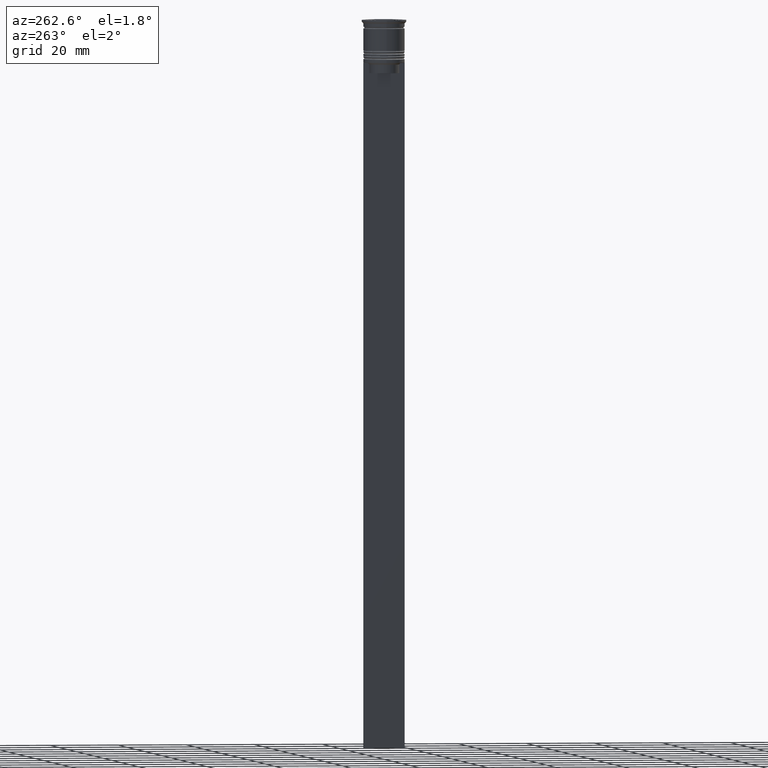
[diagram: clean part render]
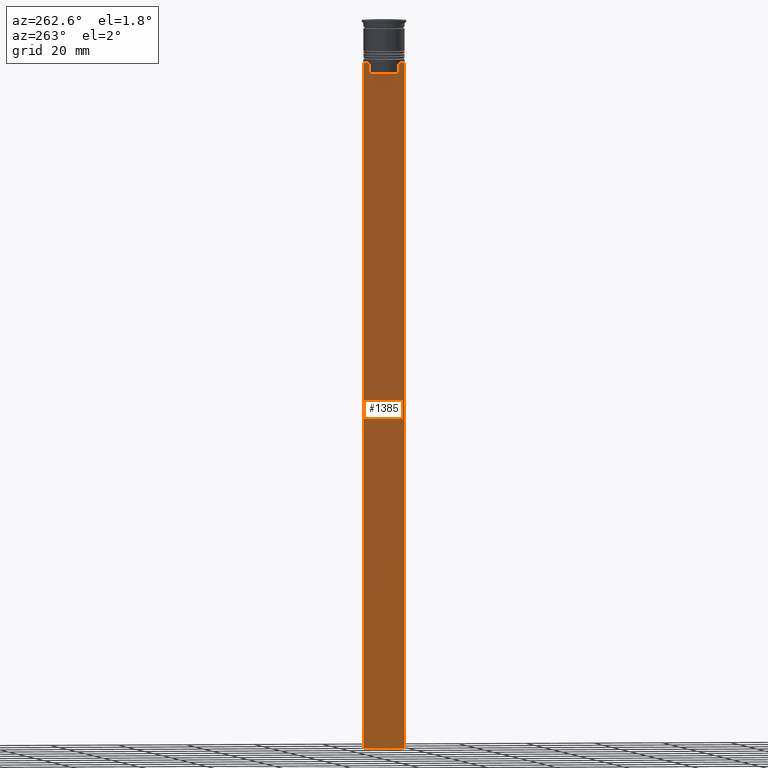
[diagram: same view with one face highlighted and labeled with its STEP entity id]
A machine part, auxiliary view. The second image highlights one B-rep face of the part: STEP entity #1385.
In plain terms, the highlighted planar face has unit normal (-1, 0, 0).
Its self-contained STEP definition (entity closure, byte-faithful):
#3 = LINE ( 'NONE', #2126, #47 ) ;
#34 = ORIENTED_EDGE ( 'NONE', *, *, #598, .F. ) ;
#47 = VECTOR ( 'NONE', #1653, 1000.000000000000000 ) ;
#75 = VERTEX_POINT ( 'NONE', #269 ) ;
#138 = B_SPLINE_CURVE_WITH_KNOTS ( 'NONE', 3,
 ( #183, #546, #1305, #1108 ),
 .UNSPECIFIED., .F., .F.,
 ( 4, 4 ),
 ( 0.008336552452178418518, 0.009045730124312837891 ),
 .UNSPECIFIED. ) ;
#158 = CARTESIAN_POINT ( 'NONE',  ( -0.4999999999999997780, 6.000000000000001776, -12.50000000000000000 ) ) ;
#183 = CARTESIAN_POINT ( 'NONE',  ( -0.4999999999999997780, 4.874423042781576676, -12.50000000000000000 ) ) ;
#213 = EDGE_CURVE ( 'NONE', #1295, #517, #1474, .T. ) ;
#266 = VERTEX_POINT ( 'NONE', #158 ) ;
#269 = CARTESIAN_POINT ( 'NONE',  ( -0.4999999999999997780, -4.371498598878878816, -13.00000000000000178 ) ) ;
#278 = DIRECTION ( 'NONE',  ( 0.000000000000000000, -1.000000000000000000, 0.000000000000000000 ) ) ;
#336 = CARTESIAN_POINT ( 'NONE',  ( -0.4999999999999997780, -4.539195586926424220, -12.83338928448044136 ) ) ;
#353 = DIRECTION ( 'NONE',  ( 0.000000000000000000, 0.000000000000000000, -1.000000000000000000 ) ) ;
#364 = EDGE_CURVE ( 'NONE', #2483, #986, #728, .T. ) ;
#479 = CARTESIAN_POINT ( 'NONE',  ( -0.4999999999999997780, -6.000000000000000000, -0.4584054212077061097 ) ) ;
#483 = ORIENTED_EDGE ( 'NONE', *, *, #570, .F. ) ;
#494 = VERTEX_POINT ( 'NONE', #790 ) ;
#495 = VECTOR ( 'NONE', #1970, 1000.000000000000000 ) ;
#498 = DIRECTION ( 'NONE',  ( 0.000000000000000000, -1.000000000000000000, 0.000000000000000000 ) ) ;
#504 = VECTOR ( 'NONE', #278, 1000.000000000000000 ) ;
#517 = VERTEX_POINT ( 'NONE', #1231 ) ;
#531 = EDGE_CURVE ( 'NONE', #986, #494, #1281, .T. ) ;
#546 = CARTESIAN_POINT ( 'NONE',  ( -0.4999999999999997780, 4.706831415367290106, -12.66671683478478982 ) ) ;
#570 = EDGE_CURVE ( 'NONE', #75, #1962, #1441, .T. ) ;
#592 = CARTESIAN_POINT ( 'NONE',  ( -0.4999999999999997780, -5.878775382679627626, -12.50000000000000000 ) ) ;
#594 = VERTEX_POINT ( 'NONE', #668 ) ;
#595 = CARTESIAN_POINT ( 'NONE',  ( -0.4999999999999997780, 4.371498598878878816, 0.000000000000000000 ) ) ;
#598 = EDGE_CURVE ( 'NONE', #1962, #918, #1060, .T. ) ;
#618 = CARTESIAN_POINT ( 'NONE',  ( -0.4999999999999997780, -4.371498598878878816, 0.000000000000000000 ) ) ;
#652 = CARTESIAN_POINT ( 'NONE',  ( -0.4999999999999997780, -6.000000000000000000, -12.50000000000000000 ) ) ;
#668 = CARTESIAN_POINT ( 'NONE',  ( -0.4999999999999997780, 5.878775382679627626, -12.50000000000000000 ) ) ;
#701 = EDGE_CURVE ( 'NONE', #266, #594, #1517, .T. ) ;
#727 = DIRECTION ( 'NONE',  ( 0.000000000000000000, -1.000000000000000000, 0.000000000000000000 ) ) ;
#728 = LINE ( 'NONE', #595, #1376 ) ;
#762 = CARTESIAN_POINT ( 'NONE',  ( -0.4999999999999997780, -6.000000000000000000, -0.4584054212077061097 ) ) ;
#782 = EDGE_CURVE ( 'NONE', #266, #517, #944, .T. ) ;
#790 = CARTESIAN_POINT ( 'NONE',  ( -0.4999999999999997780, -4.371498598878878816, -15.50000000000000000 ) ) ;
#878 = DIRECTION ( 'NONE',  ( -1.000000000000000000, 0.000000000000000000, 0.000000000000000000 ) ) ;
#883 = CARTESIAN_POINT ( 'NONE',  ( -0.4999999999999997780, -4.371498598878878816, -13.00000000000000178 ) ) ;
#888 = DIRECTION ( 'NONE',  ( 0.000000000000000000, 0.000000000000000000, 1.000000000000000000 ) ) ;
#909 = CARTESIAN_POINT ( 'NONE',  ( -0.4999999999999997780, -6.000000000000000000, -12.50000000000000000 ) ) ;
#918 = VERTEX_POINT ( 'NONE', #592 ) ;
#944 = LINE ( 'NONE', #2111, #1380 ) ;
#983 = ORIENTED_EDGE ( 'NONE', *, *, #531, .F. ) ;
#986 = VERTEX_POINT ( 'NONE', #1237 ) ;
#1015 = ORIENTED_EDGE ( 'NONE', *, *, #2154, .F. ) ;
#1055 = ORIENTED_EDGE ( 'NONE', *, *, #701, .F. ) ;
#1060 = LINE ( 'NONE', #909, #504 ) ;
#1108 = CARTESIAN_POINT ( 'NONE',  ( -0.4999999999999997780, 4.371498598878878816, -13.00000000000000178 ) ) ;
#1144 = CARTESIAN_POINT ( 'NONE',  ( -0.4999999999999997780, 4.874423042781576676, -12.50000000000000000 ) ) ;
#1165 = EDGE_LOOP ( 'NONE', ( #2356, #1548, #1055, #1509, #1687, #1748, #1324, #34, #483, #1015, #983, #2298 ) ) ;
#1202 = VECTOR ( 'NONE', #1529, 1000.000000000000000 ) ;
#1211 = CARTESIAN_POINT ( 'NONE',  ( -0.4999999999999997780, 4.371498598878878816, -13.00000000000000178 ) ) ;
#1230 = EDGE_CURVE ( 'NONE', #1355, #2483, #138, .T. ) ;
#1231 = CARTESIAN_POINT ( 'NONE',  ( -0.4999999999999997780, 6.000000000000000888, -212.5000000000000284 ) ) ;
#1234 = VERTEX_POINT ( 'NONE', #2070 ) ;
#1237 = CARTESIAN_POINT ( 'NONE',  ( -0.4999999999999997780, 4.371498598878878816, -15.50000000000000000 ) ) ;
#1244 = VECTOR ( 'NONE', #2004, 1000.000000000000000 ) ;
#1268 = CARTESIAN_POINT ( 'NONE',  ( -0.4999999999999997780, 4.399999999999999467, -15.50000000000000000 ) ) ;
#1281 = LINE ( 'NONE', #1268, #1702 ) ;
#1285 = DIRECTION ( 'NONE',  ( 0.000000000000000000, 1.000000000000000000, 0.000000000000000000 ) ) ;
#1295 = VERTEX_POINT ( 'NONE', #1541 ) ;
#1305 = CARTESIAN_POINT ( 'NONE',  ( -0.4999999999999997780, 4.539195634199897356, -12.83338923751318816 ) ) ;
#1324 = ORIENTED_EDGE ( 'NONE', *, *, #2168, .F. ) ;
#1355 = VERTEX_POINT ( 'NONE', #1144 ) ;
#1376 = VECTOR ( 'NONE', #353, 1000.000000000000000 ) ;
#1380 = VECTOR ( 'NONE', #1930, 1000.000000000000000 ) ;
#1382 = LINE ( 'NONE', #652, #1244 ) ;
#1385 = ADVANCED_FACE ( 'NONE', ( #2183 ), #1816, .T. ) ;
#1441 = B_SPLINE_CURVE_WITH_KNOTS ( 'NONE', 3,
 ( #883, #336, #2413, #2062 ),
 .UNSPECIFIED., .F., .F.,
 ( 4, 4 ),
 ( 0.02089901220910806920, 0.02161421017310284978 ),
 .UNSPECIFIED. ) ;
#1474 = LINE ( 'NONE', #2255, #1535 ) ;
#1483 = CARTESIAN_POINT ( 'NONE',  ( -0.4999999999999997780, -6.000000000000000000, -12.50000000000000000 ) ) ;
#1509 = ORIENTED_EDGE ( 'NONE', *, *, #782, .T. ) ;
#1517 = LINE ( 'NONE', #1483, #2159 ) ;
#1529 = DIRECTION ( 'NONE',  ( 0.000000000000000000, 0.000000000000000000, -1.000000000000000000 ) ) ;
#1535 = VECTOR ( 'NONE', #1285, 1000.000000000000000 ) ;
#1541 = CARTESIAN_POINT ( 'NONE',  ( -0.4999999999999997780, -6.000000000000000000, -212.5000000000000284 ) ) ;
#1548 = ORIENTED_EDGE ( 'NONE', *, *, #1958, .F. ) ;
#1593 = LINE ( 'NONE', #618, #495 ) ;
#1653 = DIRECTION ( 'NONE',  ( 0.000000000000000000, -1.000000000000000000, 0.000000000000000000 ) ) ;
#1671 = CARTESIAN_POINT ( 'NONE',  ( -0.4999999999999997780, -4.874423042781576676, -12.50000000000000000 ) ) ;
#1687 = ORIENTED_EDGE ( 'NONE', *, *, #213, .F. ) ;
#1702 = VECTOR ( 'NONE', #498, 1000.000000000000000 ) ;
#1748 = ORIENTED_EDGE ( 'NONE', *, *, #2452, .F. ) ;
#1816 = PLANE ( 'NONE',  #2060 ) ;
#1930 = DIRECTION ( 'NONE',  ( 0.000000000000000000, 0.000000000000000000, -1.000000000000000000 ) ) ;
#1958 = EDGE_CURVE ( 'NONE', #594, #1355, #3, .T. ) ;
#1962 = VERTEX_POINT ( 'NONE', #1671 ) ;
#1970 = DIRECTION ( 'NONE',  ( -0.000000000000000000, -0.000000000000000000, 1.000000000000000000 ) ) ;
#2004 = DIRECTION ( 'NONE',  ( 0.000000000000000000, -1.000000000000000000, 0.000000000000000000 ) ) ;
#2060 = AXIS2_PLACEMENT_3D ( 'NONE', #479, #878, #888 ) ;
#2062 = CARTESIAN_POINT ( 'NONE',  ( -0.4999999999999997780, -4.874423042781576676, -12.50000000000000000 ) ) ;
#2070 = CARTESIAN_POINT ( 'NONE',  ( -0.4999999999999997780, -6.000000000000000000, -12.50000000000000000 ) ) ;
#2111 = CARTESIAN_POINT ( 'NONE',  ( -0.4999999999999997780, 6.000000000000000888, -0.4584054212077061097 ) ) ;
#2126 = CARTESIAN_POINT ( 'NONE',  ( -0.4999999999999997780, -6.000000000000000000, -12.50000000000000000 ) ) ;
#2154 = EDGE_CURVE ( 'NONE', #494, #75, #1593, .T. ) ;
#2159 = VECTOR ( 'NONE', #727, 1000.000000000000000 ) ;
#2168 = EDGE_CURVE ( 'NONE', #918, #1234, #1382, .T. ) ;
#2183 = FACE_OUTER_BOUND ( 'NONE', #1165, .T. ) ;
#2255 = CARTESIAN_POINT ( 'NONE',  ( -0.4999999999999997780, -6.000000000000000000, -212.5000000000000284 ) ) ;
#2298 = ORIENTED_EDGE ( 'NONE', *, *, #364, .F. ) ;
#2356 = ORIENTED_EDGE ( 'NONE', *, *, #1230, .F. ) ;
#2413 = CARTESIAN_POINT ( 'NONE',  ( -0.4999999999999997780, -4.706831372970964544, -12.66671687695981596 ) ) ;
#2452 = EDGE_CURVE ( 'NONE', #1234, #1295, #2456, .T. ) ;
#2456 = LINE ( 'NONE', #762, #1202 ) ;
#2483 = VERTEX_POINT ( 'NONE', #1211 ) ;